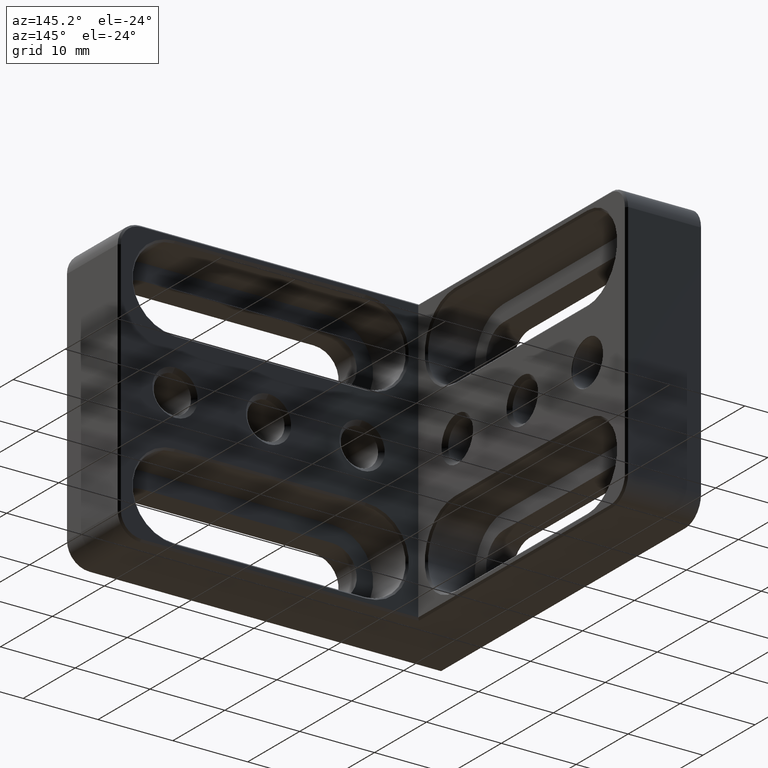
[diagram: clean part render]
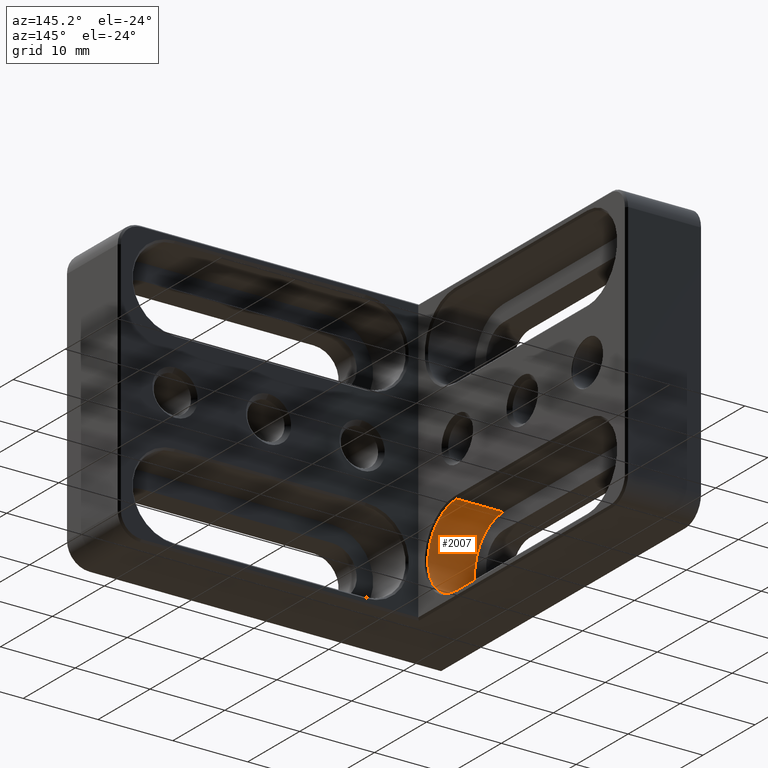
[diagram: same view with one face highlighted and labeled with its STEP entity id]
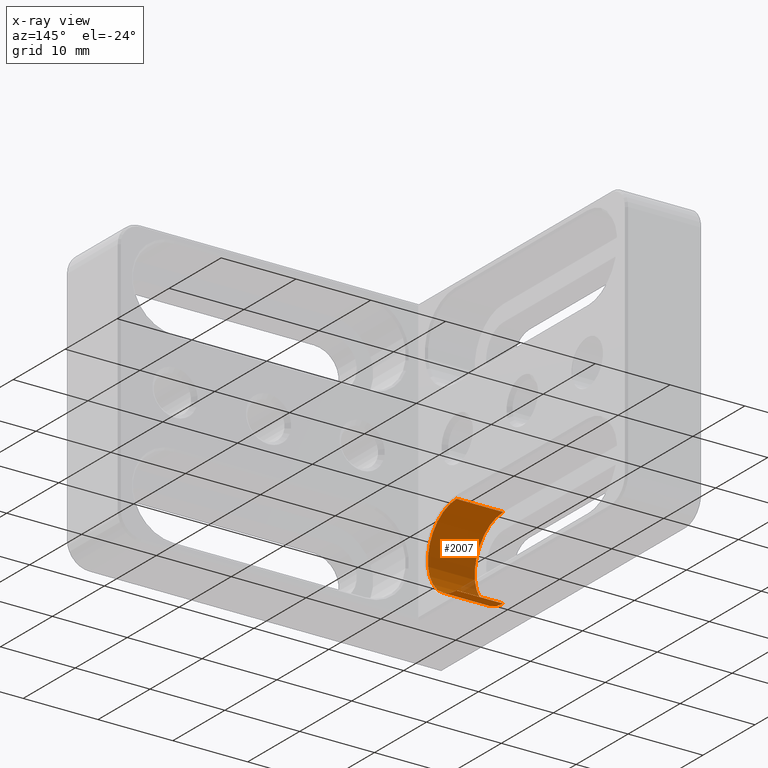
[diagram: x-ray of the same camera — body ghosted, the highlighted face saturated]
A machine part, auxiliary view. The second image highlights one B-rep face of the part: STEP entity #2007.
The next image is the same camera in x-ray: the body ghosted, the highlighted face saturated — about 3% of this face is hidden behind the body in this view.
In plain terms, the highlighted cylindrical surface (partial cylindrical patch) has radius 5.5 mm, axis along (1, -0, 0).
Its self-contained STEP definition (entity closure, byte-faithful):
#27 = CIRCLE ( 'NONE', #278, 5.500000000000002665 ) ;
#144 = DIRECTION ( 'NONE',  ( 1.000000000000000000, -0.000000000000000000, 1.369518533665900312E-16 ) ) ;
#232 = ORIENTED_EDGE ( 'NONE', *, *, #1373, .T. ) ;
#234 = DIRECTION ( 'NONE',  ( -6.938893903907225222E-15, 0.000000000000000000, 1.000000000000000000 ) ) ;
#258 = EDGE_LOOP ( 'NONE', ( #232, #1223, #974, #2129 ) ) ;
#278 = AXIS2_PLACEMENT_3D ( 'NONE', #2057, #2095, #234 ) ;
#289 = LINE ( 'NONE', #2127, #1536 ) ;
#291 = VERTEX_POINT ( 'NONE', #2490 ) ;
#304 = CARTESIAN_POINT ( 'NONE',  ( -15.25000000000000178, 17.00000000000000355, -7.000000000000004441 ) ) ;
#466 = FACE_OUTER_BOUND ( 'NONE', #258, .T. ) ;
#605 = CARTESIAN_POINT ( 'NONE',  ( -21.50000000000000355, 17.00000000000000355, -7.000000000000005329 ) ) ;
#810 = DIRECTION ( 'NONE',  ( -1.000000000000000000, -0.000000000000000000, -1.369518533665900312E-16 ) ) ;
#816 = EDGE_CURVE ( 'NONE', #291, #1315, #289, .T. ) ;
#893 = AXIS2_PLACEMENT_3D ( 'NONE', #2519, #1277, #1880 ) ;
#898 = VERTEX_POINT ( 'NONE', #304 ) ;
#968 = EDGE_CURVE ( 'NONE', #291, #2136, #2479, .T. ) ;
#974 = ORIENTED_EDGE ( 'NONE', *, *, #816, .F. ) ;
#1223 = ORIENTED_EDGE ( 'NONE', *, *, #2269, .T. ) ;
#1277 = DIRECTION ( 'NONE',  ( 1.000000000000000000, -0.000000000000000000, 1.369518533665900312E-16 ) ) ;
#1302 = DIRECTION ( 'NONE',  ( 1.000000000000000000, -0.000000000000000000, 1.369518533665900312E-16 ) ) ;
#1312 = CYLINDRICAL_SURFACE ( 'NONE', #893, 5.500000000000003553 ) ;
#1315 = VERTEX_POINT ( 'NONE', #2151 ) ;
#1373 = EDGE_CURVE ( 'NONE', #2136, #898, #1962, .T. ) ;
#1536 = VECTOR ( 'NONE', #1302, 1000.000000000000000 ) ;
#1598 = DIRECTION ( 'NONE',  ( 0.000000000000000000, 0.000000000000000000, 1.000000000000000000 ) ) ;
#1841 = CARTESIAN_POINT ( 'NONE',  ( -21.50000000000000355, 17.00000000000000355, -12.50000000000000533 ) ) ;
#1880 = DIRECTION ( 'NONE',  ( 0.000000000000000000, 0.000000000000000000, -1.000000000000000000 ) ) ;
#1962 = LINE ( 'NONE', #2450, #2523 ) ;
#2007 = ADVANCED_FACE ( 'NONE', ( #466 ), #1312, .F. ) ;
#2057 = CARTESIAN_POINT ( 'NONE',  ( -15.25000000000000000, 17.00000000000000355, -12.50000000000000533 ) ) ;
#2095 = DIRECTION ( 'NONE',  ( 1.000000000000000000, -0.000000000000000000, 6.938893903907414549E-15 ) ) ;
#2127 = CARTESIAN_POINT ( 'NONE',  ( -21.50000000000000355, 17.00000000000000355, -18.00000000000000711 ) ) ;
#2129 = ORIENTED_EDGE ( 'NONE', *, *, #968, .T. ) ;
#2136 = VERTEX_POINT ( 'NONE', #605 ) ;
#2151 = CARTESIAN_POINT ( 'NONE',  ( -15.24999999999996270, 17.00000000000000355, -18.00000000000000711 ) ) ;
#2269 = EDGE_CURVE ( 'NONE', #898, #1315, #27, .T. ) ;
#2275 = AXIS2_PLACEMENT_3D ( 'NONE', #1841, #810, #1598 ) ;
#2450 = CARTESIAN_POINT ( 'NONE',  ( -21.50000000000000355, 17.00000000000000355, -7.000000000000005329 ) ) ;
#2479 = CIRCLE ( 'NONE', #2275, 5.500000000000002665 ) ;
#2490 = CARTESIAN_POINT ( 'NONE',  ( -21.50000000000000355, 17.00000000000000355, -18.00000000000000711 ) ) ;
#2519 = CARTESIAN_POINT ( 'NONE',  ( -21.50000000000000355, 17.00000000000000355, -12.50000000000000533 ) ) ;
#2523 = VECTOR ( 'NONE', #144, 1000.000000000000000 ) ;